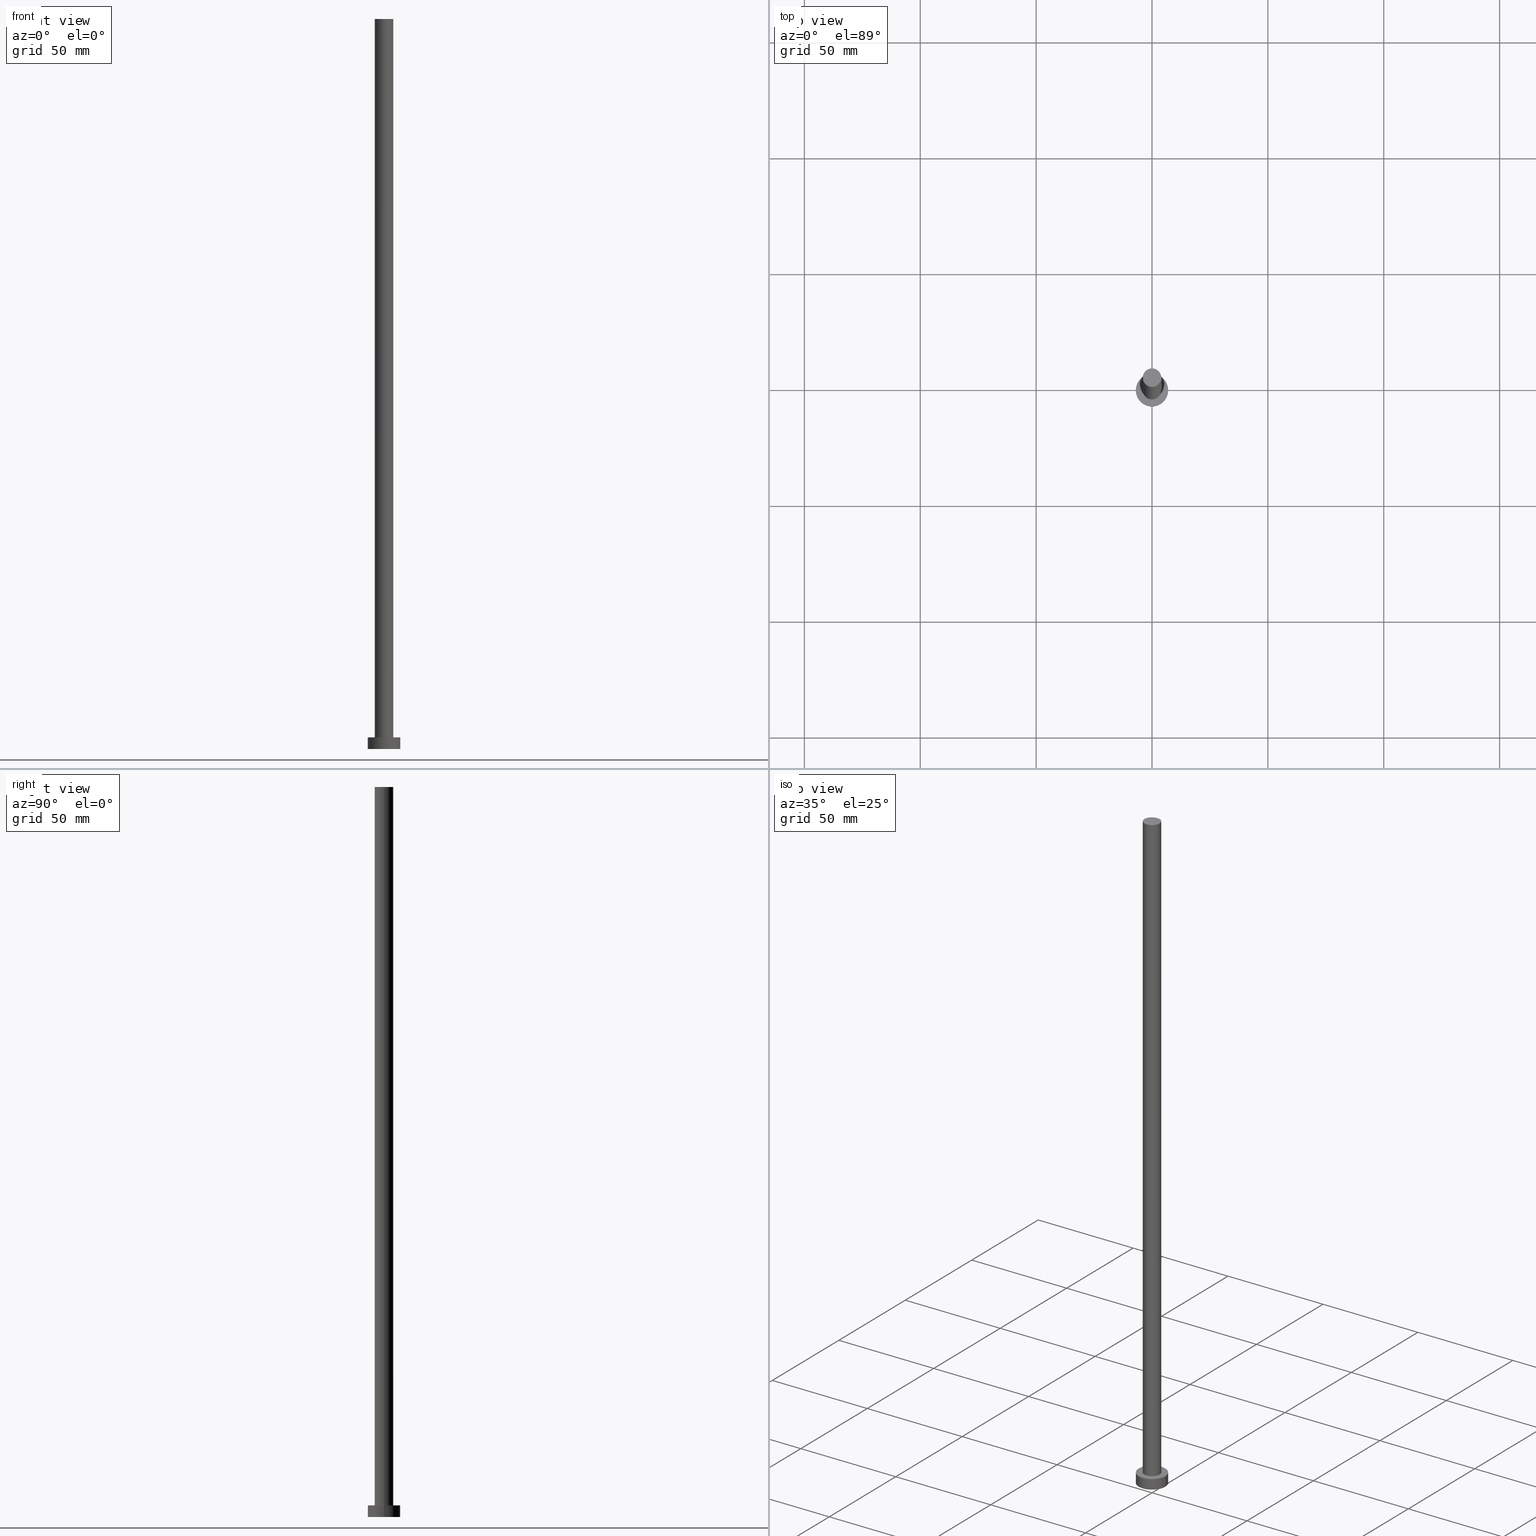
[diagram: canonical four-view strip — front | top / right | iso, engineering-drawing reading convention]
A machine part, canonical four-view strip (front | top / right | iso — engineering-drawing reading convention). The complete STEP part file that produces these views, byte-faithful:
ISO-10303-21;
HEADER;
FILE_DESCRIPTION (( 'STEP AP203' ),
    '1' );
FILE_NAME ('fa00.STEP',
    '2023-02-13T14:22:35',
    ( '' ),
    ( '' ),
    'SwSTEP 2.0',
    'SolidWorks 2019',
    '' );
FILE_SCHEMA (( 'CONFIG_CONTROL_DESIGN' ));
ENDSEC;

DATA;
#1 = CARTESIAN_POINT ( 'NONE',  ( 0.000000000000000000, 0.000000000000000000, 0.000000000000000000 ) ) ;
#2 = DIRECTION ( 'NONE',  ( 0.000000000000000000, 0.000000000000000000, 1.000000000000000000 ) ) ;
#3 = DIRECTION ( 'NONE',  ( 1.000000000000000000, 0.000000000000000000, -0.000000000000000000 ) ) ;
#4 = AXIS2_PLACEMENT_3D ( 'NONE', #174, #177, #3 ) ;
#5 = CARTESIAN_POINT ( 'NONE',  ( 0.000000000000000000, 0.000000000000000000, 5.000000000000000000 ) ) ;
#6 = EDGE_CURVE ( 'NONE', #168, #150, #172, .T. ) ;
#7 = CARTESIAN_POINT ( 'NONE',  ( -7.000000000000000000, 0.000000000000000000, 0.000000000000000000 ) ) ;
#8 = DIRECTION ( 'NONE',  ( -1.000000000000000000, 0.000000000000000000, 0.000000000000000000 ) ) ;
#9 = PERSON_AND_ORGANIZATION ( #149, #59 ) ;
#10 = DIRECTION ( 'NONE',  ( 0.000000000000000000, 0.000000000000000000, 1.000000000000000000 ) ) ;
#11 = EDGE_CURVE ( 'NONE', #168, #74, #21, .T. ) ;
#12 = APPROVAL ( #143, 'NEUR�EN�' ) ;
#13 = PERSON_AND_ORGANIZATION ( #149, #59 ) ;
#14 = DATE_AND_TIME ( #246, #122 ) ;
#15 = EDGE_CURVE ( 'NONE', #254, #74, #193, .T. ) ;
#16 = AXIS2_PLACEMENT_3D ( 'NONE', #80, #221, #238 ) ;
#17 = DIRECTION ( 'NONE',  ( 1.000000000000000000, 0.000000000000000000, 0.000000000000000000 ) ) ;
#18 = ORIENTED_EDGE ( 'NONE', *, *, #140, .F. ) ;
#19 = EDGE_CURVE ( 'NONE', #150, #254, #154, .T. ) ;
#20 = PERSON_AND_ORGANIZATION_ROLE ( 'design_owner' ) ;
#21 = LINE ( 'NONE', #95, #138 ) ;
#22 = CARTESIAN_POINT ( 'NONE',  ( 0.000000000000000000, 0.000000000000000000, 5.000000000000000000 ) ) ;
#23 = DIRECTION ( 'NONE',  ( -0.000000000000000000, -0.000000000000000000, -1.000000000000000000 ) ) ;
#24 = DIRECTION ( 'NONE',  ( 1.000000000000000000, 0.000000000000000000, 0.000000000000000000 ) ) ;
#25 = CYLINDRICAL_SURFACE ( 'NONE', #123, 7.000000000000000000 ) ;
#26 = DIRECTION ( 'NONE',  ( -1.000000000000000000, 0.000000000000000000, 0.000000000000000000 ) ) ;
#27 = PERSON_AND_ORGANIZATION ( #149, #59 ) ;
#28 = CC_DESIGN_PERSON_AND_ORGANIZATION_ASSIGNMENT ( #67, #250, ( #73 ) ) ;
#29 = CARTESIAN_POINT ( 'NONE',  ( 0.000000000000000000, 0.000000000000000000, 315.0000000000000000 ) ) ;
#30 = CALENDAR_DATE ( 2023, 13, 2 ) ;
#31 = CALENDAR_DATE ( 2023, 13, 2 ) ;
#32 = CARTESIAN_POINT ( 'NONE',  ( -7.000000000000000000, 0.000000000000000000, 5.000000000000000000 ) ) ;
#33 = EDGE_LOOP ( 'NONE', ( #52, #110 ) ) ;
#34 = APPROVAL_ROLE ( '' ) ;
#35 = LOCAL_TIME ( 15, 22, 35.00000000000000000, #228 ) ;
#36 = CLOSED_SHELL ( 'NONE', ( #111, #37, #217, #210, #62, #46, #49 ) ) ;
#37 = ADVANCED_FACE ( 'NONE', ( #214 ), #25, .T. ) ;
#38 = VECTOR ( 'NONE', #223, 1000.000000000000000 ) ;
#39 = ORIENTED_EDGE ( 'NONE', *, *, #136, .F. ) ;
#40 = ORIENTED_EDGE ( 'NONE', *, *, #11, .F. ) ;
#41 = CARTESIAN_POINT ( 'NONE',  ( 0.000000000000000000, 0.000000000000000000, 5.000000000000000000 ) ) ;
#42 = ORIENTED_EDGE ( 'NONE', *, *, #6, .F. ) ;
#43 = AXIS2_PLACEMENT_3D ( 'NONE', #199, #237, #197 ) ;
#44 = ORIENTED_EDGE ( 'NONE', *, *, #120, .T. ) ;
#45 = FACE_OUTER_BOUND ( 'NONE', #108, .T. ) ;
#46 = ADVANCED_FACE ( 'NONE', ( #114 ), #100, .T. ) ;
#47 = APPROVAL_ROLE ( '' ) ;
#48 = ORIENTED_EDGE ( 'NONE', *, *, #231, .T. ) ;
#49 = ADVANCED_FACE ( 'NONE', ( #45 ), #79, .T. ) ;
#50 = UNCERTAINTY_MEASURE_WITH_UNIT (LENGTH_MEASURE( 1.000000000000000082E-05 ), #255, 'distance_accuracy_value', 'NONE');
#51 = APPROVAL ( #65, 'NEUR�EN�' ) ;
#52 = ORIENTED_EDGE ( 'NONE', *, *, #231, .F. ) ;
#53 = APPLICATION_CONTEXT ( 'configuration controlled 3d designs of mechanical parts and assemblies' ) ;
#54 = DIRECTION ( 'NONE',  ( -0.000000000000000000, -0.000000000000000000, -1.000000000000000000 ) ) ;
#55 = AXIS2_PLACEMENT_3D ( 'NONE', #222, #158, #8 ) ;
#56 = ORIENTED_EDGE ( 'NONE', *, *, #204, .T. ) ;
#57 = ADVANCED_BREP_SHAPE_REPRESENTATION ( 'fa00', ( #151, #245 ), #183 ) ;
#58 = VERTEX_POINT ( 'NONE', #116 ) ;
#59 = ORGANIZATION ( 'NEUR�EN�', 'NEUR�EN�', '' ) ;
#60 = FACE_OUTER_BOUND ( 'NONE', #70, .T. ) ;
#61 = CARTESIAN_POINT ( 'NONE',  ( -4.000000000000000000, 0.000000000000000000, 315.0000000000000000 ) ) ;
#62 = ADVANCED_FACE ( 'NONE', ( #113 ), #200, .F. ) ;
#63 = COORDINATED_UNIVERSAL_TIME_OFFSET ( 1, 0, .AHEAD. ) ;
#64 = CC_DESIGN_APPROVAL ( #77, ( #209 ) ) ;
#65 = APPROVAL_STATUS ( 'not_yet_approved' ) ;
#66 = AXIS2_PLACEMENT_3D ( 'NONE', #41, #219, #99 ) ;
#67 = PERSON_AND_ORGANIZATION ( #149, #59 ) ;
#68 = CC_DESIGN_DATE_AND_TIME_ASSIGNMENT ( #244, #139, ( #96 ) ) ;
#69 = VECTOR ( 'NONE', #54, 1000.000000000000000 ) ;
#70 = EDGE_LOOP ( 'NONE', ( #173, #71, #220, #252 ) ) ;
#71 = ORIENTED_EDGE ( 'NONE', *, *, #140, .T. ) ;
#72 = ORIENTED_EDGE ( 'NONE', *, *, #188, .T. ) ;
#73 = PRODUCT_DEFINITION_FORMATION_WITH_SPECIFIED_SOURCE ( 'LIBOVOLN�', '', #129, .NOT_KNOWN. ) ;
#74 = VERTEX_POINT ( 'NONE', #241 ) ;
#75 = CARTESIAN_POINT ( 'NONE',  ( 0.000000000000000000, 0.000000000000000000, 5.000000000000000000 ) ) ;
#76 = DIRECTION ( 'NONE',  ( 0.000000000000000000, 0.000000000000000000, 1.000000000000000000 ) ) ;
#77 = APPROVAL ( #208, 'NEUR�EN�' ) ;
#78 = DIRECTION ( 'NONE',  ( -0.000000000000000000, -0.000000000000000000, -1.000000000000000000 ) ) ;
#79 = PLANE ( 'NONE',  #16 ) ;
#80 = CARTESIAN_POINT ( 'NONE',  ( 0.000000000000000000, 0.000000000000000000, 315.0000000000000000 ) ) ;
#81 = CARTESIAN_POINT ( 'NONE',  ( 4.000000000000000000, 4.898587196589412829E-16, 315.0000000000000000 ) ) ;
#82 = DIRECTION ( 'NONE',  ( 0.000000000000000000, 0.000000000000000000, 1.000000000000000000 ) ) ;
#83 = DIRECTION ( 'NONE',  ( -1.000000000000000000, 0.000000000000000000, 0.000000000000000000 ) ) ;
#84 = LINE ( 'NONE', #202, #191 ) ;
#85 = COORDINATED_UNIVERSAL_TIME_OFFSET ( 1, 0, .AHEAD. ) ;
#86 = DIRECTION ( 'NONE',  ( 1.000000000000000000, 0.000000000000000000, 0.000000000000000000 ) ) ;
#87 = AXIS2_PLACEMENT_3D ( 'NONE', #22, #78, #155 ) ;
#88 = SECURITY_CLASSIFICATION_LEVEL ( 'unclassified' ) ;
#89 = EDGE_LOOP ( 'NONE', ( #42, #167, #56, #235 ) ) ;
#90 = APPROVAL_PERSON_ORGANIZATION ( #13, #77, #34 ) ;
#91 = ORIENTED_EDGE ( 'NONE', *, *, #15, .F. ) ;
#92 = CC_DESIGN_PERSON_AND_ORGANIZATION_ASSIGNMENT ( #230, #145, ( #209 ) ) ;
#93 = VERTEX_POINT ( 'NONE', #61 ) ;
#94 = ORIENTED_EDGE ( 'NONE', *, *, #6, .T. ) ;
#95 = CARTESIAN_POINT ( 'NONE',  ( 7.000000000000000000, 8.572527594031473190E-16, 5.000000000000000000 ) ) ;
#96 = PRODUCT_DEFINITION ( 'NEZN�M�', '', #73, #251 ) ;
#97 = PRODUCT_DEFINITION_SHAPE ( 'NONE', 'NONE',  #96 ) ;
#98 = CARTESIAN_POINT ( 'NONE',  ( 0.000000000000000000, 0.000000000000000000, 315.0000000000000000 ) ) ;
#99 = DIRECTION ( 'NONE',  ( 1.000000000000000000, 0.000000000000000000, -0.000000000000000000 ) ) ;
#100 = CYLINDRICAL_SURFACE ( 'NONE', #55, 4.000000000000000000 ) ;
#101 = APPROVAL_PERSON_ORGANIZATION ( #119, #51, #141 ) ;
#102 = DIRECTION ( 'NONE',  ( 0.000000000000000000, 0.000000000000000000, 1.000000000000000000 ) ) ;
#103 = APPLICATION_PROTOCOL_DEFINITION ( 'international standard', 'config_control_design', 1994, #53 ) ;
#104 = FACE_OUTER_BOUND ( 'NONE', #126, .T. ) ;
#105 = CALENDAR_DATE ( 2023, 13, 2 ) ;
#106 = EDGE_LOOP ( 'NONE', ( #91, #215 ) ) ;
#107 = DATE_AND_TIME ( #30, #171 ) ;
#108 = EDGE_LOOP ( 'NONE', ( #128, #72 ) ) ;
#109 = ORIENTED_EDGE ( 'NONE', *, *, #15, .T. ) ;
#110 = ORIENTED_EDGE ( 'NONE', *, *, #162, .F. ) ;
#111 = ADVANCED_FACE ( 'NONE', ( #60 ), #135, .T. ) ;
#112 = EDGE_LOOP ( 'NONE', ( #40, #213, #216, #109 ) ) ;
#113 = FACE_OUTER_BOUND ( 'NONE', #106, .T. ) ;
#114 = FACE_OUTER_BOUND ( 'NONE', #195, .T. ) ;
#115 = PERSON_AND_ORGANIZATION ( #149, #59 ) ;
#116 = CARTESIAN_POINT ( 'NONE',  ( -4.000000000000000000, 0.000000000000000000, 5.000000000000000000 ) ) ;
#117 = CARTESIAN_POINT ( 'NONE',  ( 0.000000000000000000, 0.000000000000000000, 0.000000000000000000 ) ) ;
#118 = DATE_AND_TIME ( #181, #130 ) ;
#119 = PERSON_AND_ORGANIZATION ( #149, #59 ) ;
#120 = EDGE_CURVE ( 'NONE', #150, #168, #124, .T. ) ;
#121 = PERSON_AND_ORGANIZATION ( #149, #59 ) ;
#122 = LOCAL_TIME ( 15, 22, 35.00000000000000000, #187 ) ;
#123 = AXIS2_PLACEMENT_3D ( 'NONE', #201, #159, #83 ) ;
#124 = CIRCLE ( 'NONE', #144, 7.000000000000000000 ) ;
#125 = ORIENTED_EDGE ( 'NONE', *, *, #192, .T. ) ;
#126 = EDGE_LOOP ( 'NONE', ( #44, #94 ) ) ;
#127 =( NAMED_UNIT ( * ) SI_UNIT ( $, .STERADIAN. ) SOLID_ANGLE_UNIT ( ) );
#128 = ORIENTED_EDGE ( 'NONE', *, *, #136, .T. ) ;
#129 = PRODUCT ( 'fa00', 'fa00', '', ( #198 ) ) ;
#130 = LOCAL_TIME ( 15, 22, 35.00000000000000000, #63 ) ;
#131 = DIRECTION ( 'NONE',  ( 0.000000000000000000, 0.000000000000000000, 1.000000000000000000 ) ) ;
#132 = CARTESIAN_POINT ( 'NONE',  ( 0.000000000000000000, 0.000000000000000000, 5.000000000000000000 ) ) ;
#133 = CIRCLE ( 'NONE', #142, 4.000000000000000000 ) ;
#134 = APPLICATION_PROTOCOL_DEFINITION ( 'international standard', 'config_control_design', 1994, #248 ) ;
#135 = CYLINDRICAL_SURFACE ( 'NONE', #212, 4.000000000000000000 ) ;
#136 = EDGE_CURVE ( 'NONE', #93, #170, #178, .T. ) ;
#137 = DIRECTION ( 'NONE',  ( 0.000000000000000000, 0.000000000000000000, 1.000000000000000000 ) ) ;
#138 = VECTOR ( 'NONE', #194, 1000.000000000000000 ) ;
#139 = DATE_TIME_ROLE ( 'creation_date' ) ;
#140 = EDGE_CURVE ( 'NONE', #170, #253, #84, .T. ) ;
#141 = APPROVAL_ROLE ( '' ) ;
#142 = AXIS2_PLACEMENT_3D ( 'NONE', #5, #206, #86 ) ;
#143 = APPROVAL_STATUS ( 'not_yet_approved' ) ;
#144 = AXIS2_PLACEMENT_3D ( 'NONE', #132, #102, #180 ) ;
#145 = PERSON_AND_ORGANIZATION_ROLE ( 'classification_officer' ) ;
#146 = AXIS2_PLACEMENT_3D ( 'NONE', #29, #10, #157 ) ;
#147 = CIRCLE ( 'NONE', #152, 4.000000000000000000 ) ;
#148 = CC_DESIGN_PERSON_AND_ORGANIZATION_ASSIGNMENT ( #121, #229, ( #73 ) ) ;
#149 = PERSON ( 'NEUR�EN�', 'NEUR�EN�', 'NEUR�EN�', ('NEUR�EN�'), ('NEUR�EN�'), ('NEUR�EN�') ) ;
#150 = VERTEX_POINT ( 'NONE', #32 ) ;
#151 = MANIFOLD_SOLID_BREP ( 'P�idat vysunut�m3', #36 ) ;
#152 = AXIS2_PLACEMENT_3D ( 'NONE', #75, #131, #24 ) ;
#153 = CC_DESIGN_APPROVAL ( #51, ( #96 ) ) ;
#154 = LINE ( 'NONE', #233, #69 ) ;
#155 = DIRECTION ( 'NONE',  ( -1.000000000000000000, 0.000000000000000000, 0.000000000000000000 ) ) ;
#156 = DIRECTION ( 'NONE',  ( 1.000000000000000000, 0.000000000000000000, 0.000000000000000000 ) ) ;
#157 = DIRECTION ( 'NONE',  ( 1.000000000000000000, 0.000000000000000000, 0.000000000000000000 ) ) ;
#158 = DIRECTION ( 'NONE',  ( -0.000000000000000000, -0.000000000000000000, -1.000000000000000000 ) ) ;
#159 = DIRECTION ( 'NONE',  ( -0.000000000000000000, -0.000000000000000000, -1.000000000000000000 ) ) ;
#160 = CIRCLE ( 'NONE', #146, 4.000000000000000000 ) ;
#161 = CARTESIAN_POINT ( 'NONE',  ( -4.000000000000000000, 0.000000000000000000, 315.0000000000000000 ) ) ;
#162 = EDGE_CURVE ( 'NONE', #253, #58, #133, .T. ) ;
#163 = DATE_TIME_ROLE ( 'classification_date' ) ;
#164 = COORDINATED_UNIVERSAL_TIME_OFFSET ( 1, 0, .AHEAD. ) ;
#165 = PRODUCT_RELATED_PRODUCT_CATEGORY ( 'detail', '', ( #129 ) ) ;
#166 = CC_DESIGN_APPROVAL ( #12, ( #73 ) ) ;
#167 = ORIENTED_EDGE ( 'NONE', *, *, #11, .T. ) ;
#168 = VERTEX_POINT ( 'NONE', #185 ) ;
#169 = CYLINDRICAL_SURFACE ( 'NONE', #87, 7.000000000000000000 ) ;
#170 = VERTEX_POINT ( 'NONE', #81 ) ;
#171 = LOCAL_TIME ( 15, 22, 35.00000000000000000, #164 ) ;
#172 = CIRCLE ( 'NONE', #43, 7.000000000000000000 ) ;
#173 = ORIENTED_EDGE ( 'NONE', *, *, #188, .F. ) ;
#174 = CARTESIAN_POINT ( 'NONE',  ( 0.000000000000000000, 0.000000000000000000, 0.000000000000000000 ) ) ;
#175 = CIRCLE ( 'NONE', #236, 7.000000000000000000 ) ;
#176 = CARTESIAN_POINT ( 'NONE',  ( 4.000000000000000000, 4.898587196589412829E-16, 5.000000000000000000 ) ) ;
#177 = DIRECTION ( 'NONE',  ( 0.000000000000000000, 0.000000000000000000, 1.000000000000000000 ) ) ;
#178 = CIRCLE ( 'NONE', #249, 4.000000000000000000 ) ;
#179 = CARTESIAN_POINT ( 'NONE',  ( 0.000000000000000000, 0.000000000000000000, 0.000000000000000000 ) ) ;
#180 = DIRECTION ( 'NONE',  ( 1.000000000000000000, 0.000000000000000000, 0.000000000000000000 ) ) ;
#181 = CALENDAR_DATE ( 2023, 13, 2 ) ;
#182 = PLANE ( 'NONE',  #66 ) ;
#183 =( GEOMETRIC_REPRESENTATION_CONTEXT ( 3 ) GLOBAL_UNCERTAINTY_ASSIGNED_CONTEXT ( ( #50 ) ) GLOBAL_UNIT_ASSIGNED_CONTEXT ( ( #255, #240, #127 ) ) REPRESENTATION_CONTEXT ( 'NONE', 'WORKASPACE' ) );
#184 = APPROVAL_DATE_TIME ( #226, #12 ) ;
#185 = CARTESIAN_POINT ( 'NONE',  ( 7.000000000000000000, 8.572527594031473190E-16, 5.000000000000000000 ) ) ;
#186 = APPROVAL_DATE_TIME ( #14, #77 ) ;
#187 = COORDINATED_UNIVERSAL_TIME_OFFSET ( 1, 0, .AHEAD. ) ;
#188 = EDGE_CURVE ( 'NONE', #170, #93, #160, .T. ) ;
#189 = SHAPE_DEFINITION_REPRESENTATION ( #97, #57 ) ;
#190 = LOCAL_TIME ( 15, 22, 35.00000000000000000, #85 ) ;
#191 = VECTOR ( 'NONE', #243, 1000.000000000000000 ) ;
#192 = EDGE_CURVE ( 'NONE', #93, #58, #242, .T. ) ;
#193 = CIRCLE ( 'NONE', #239, 7.000000000000000000 ) ;
#194 = DIRECTION ( 'NONE',  ( -0.000000000000000000, -0.000000000000000000, -1.000000000000000000 ) ) ;
#195 = EDGE_LOOP ( 'NONE', ( #18, #39, #125, #48 ) ) ;
#196 = FACE_OUTER_BOUND ( 'NONE', #112, .T. ) ;
#197 = DIRECTION ( 'NONE',  ( 1.000000000000000000, 0.000000000000000000, 0.000000000000000000 ) ) ;
#198 = MECHANICAL_CONTEXT ( 'NONE', #248, 'mechanical' ) ;
#199 = CARTESIAN_POINT ( 'NONE',  ( 0.000000000000000000, 0.000000000000000000, 5.000000000000000000 ) ) ;
#200 = PLANE ( 'NONE',  #4 ) ;
#201 = CARTESIAN_POINT ( 'NONE',  ( 0.000000000000000000, 0.000000000000000000, 5.000000000000000000 ) ) ;
#202 = CARTESIAN_POINT ( 'NONE',  ( 4.000000000000000000, 4.898587196589412829E-16, 315.0000000000000000 ) ) ;
#203 = CARTESIAN_POINT ( 'NONE',  ( 0.000000000000000000, 0.000000000000000000, 315.0000000000000000 ) ) ;
#204 = EDGE_CURVE ( 'NONE', #74, #254, #175, .T. ) ;
#205 = FACE_BOUND ( 'NONE', #33, .T. ) ;
#206 = DIRECTION ( 'NONE',  ( 0.000000000000000000, 0.000000000000000000, 1.000000000000000000 ) ) ;
#207 = PERSON_AND_ORGANIZATION_ROLE ( 'creator' ) ;
#208 = APPROVAL_STATUS ( 'not_yet_approved' ) ;
#209 = SECURITY_CLASSIFICATION ( '', '', #88 ) ;
#210 = ADVANCED_FACE ( 'NONE', ( #205, #104 ), #182, .T. ) ;
#211 = CC_DESIGN_SECURITY_CLASSIFICATION ( #209, ( #73 ) ) ;
#212 = AXIS2_PLACEMENT_3D ( 'NONE', #203, #23, #26 ) ;
#213 = ORIENTED_EDGE ( 'NONE', *, *, #120, .F. ) ;
#214 = FACE_OUTER_BOUND ( 'NONE', #89, .T. ) ;
#215 = ORIENTED_EDGE ( 'NONE', *, *, #204, .F. ) ;
#216 = ORIENTED_EDGE ( 'NONE', *, *, #19, .T. ) ;
#217 = ADVANCED_FACE ( 'NONE', ( #196 ), #169, .T. ) ;
#218 = CC_DESIGN_DATE_AND_TIME_ASSIGNMENT ( #107, #163, ( #209 ) ) ;
#219 = DIRECTION ( 'NONE',  ( 0.000000000000000000, 0.000000000000000000, 1.000000000000000000 ) ) ;
#220 = ORIENTED_EDGE ( 'NONE', *, *, #162, .T. ) ;
#221 = DIRECTION ( 'NONE',  ( 0.000000000000000000, 0.000000000000000000, 1.000000000000000000 ) ) ;
#222 = CARTESIAN_POINT ( 'NONE',  ( 0.000000000000000000, 0.000000000000000000, 315.0000000000000000 ) ) ;
#223 = DIRECTION ( 'NONE',  ( -0.000000000000000000, -0.000000000000000000, -1.000000000000000000 ) ) ;
#224 = DIRECTION ( 'NONE',  ( 1.000000000000000000, 0.000000000000000000, 0.000000000000000000 ) ) ;
#225 = APPROVAL_PERSON_ORGANIZATION ( #27, #12, #47 ) ;
#226 = DATE_AND_TIME ( #105, #35 ) ;
#227 = APPROVAL_DATE_TIME ( #118, #51 ) ;
#228 = COORDINATED_UNIVERSAL_TIME_OFFSET ( 1, 0, .AHEAD. ) ;
#229 = PERSON_AND_ORGANIZATION_ROLE ( 'creator' ) ;
#230 = PERSON_AND_ORGANIZATION ( #149, #59 ) ;
#231 = EDGE_CURVE ( 'NONE', #58, #253, #147, .T. ) ;
#232 = CC_DESIGN_PERSON_AND_ORGANIZATION_ASSIGNMENT ( #9, #207, ( #96 ) ) ;
#233 = CARTESIAN_POINT ( 'NONE',  ( -7.000000000000000000, 0.000000000000000000, 5.000000000000000000 ) ) ;
#234 = DIRECTION ( 'NONE',  ( 1.000000000000000000, 0.000000000000000000, 0.000000000000000000 ) ) ;
#235 = ORIENTED_EDGE ( 'NONE', *, *, #19, .F. ) ;
#236 = AXIS2_PLACEMENT_3D ( 'NONE', #117, #137, #224 ) ;
#237 = DIRECTION ( 'NONE',  ( 0.000000000000000000, 0.000000000000000000, 1.000000000000000000 ) ) ;
#238 = DIRECTION ( 'NONE',  ( 1.000000000000000000, 0.000000000000000000, -0.000000000000000000 ) ) ;
#239 = AXIS2_PLACEMENT_3D ( 'NONE', #1, #76, #17 ) ;
#240 =( NAMED_UNIT ( * ) PLANE_ANGLE_UNIT ( ) SI_UNIT ( $, .RADIAN. ) );
#241 = CARTESIAN_POINT ( 'NONE',  ( 7.000000000000000000, 8.572527594031473190E-16, 0.000000000000000000 ) ) ;
#242 = LINE ( 'NONE', #161, #38 ) ;
#243 = DIRECTION ( 'NONE',  ( -0.000000000000000000, -0.000000000000000000, -1.000000000000000000 ) ) ;
#244 = DATE_AND_TIME ( #31, #190 ) ;
#245 = AXIS2_PLACEMENT_3D ( 'NONE', #179, #82, #234 ) ;
#246 = CALENDAR_DATE ( 2023, 13, 2 ) ;
#247 = CC_DESIGN_PERSON_AND_ORGANIZATION_ASSIGNMENT ( #115, #20, ( #129 ) ) ;
#248 = APPLICATION_CONTEXT ( 'configuration controlled 3d designs of mechanical parts and assemblies' ) ;
#249 = AXIS2_PLACEMENT_3D ( 'NONE', #98, #2, #156 ) ;
#250 = PERSON_AND_ORGANIZATION_ROLE ( 'design_supplier' ) ;
#251 = DESIGN_CONTEXT ( 'detailed design', #53, 'design' ) ;
#252 = ORIENTED_EDGE ( 'NONE', *, *, #192, .F. ) ;
#253 = VERTEX_POINT ( 'NONE', #176 ) ;
#254 = VERTEX_POINT ( 'NONE', #7 ) ;
#255 =( LENGTH_UNIT ( ) NAMED_UNIT ( * ) SI_UNIT ( .MILLI., .METRE. ) );
ENDSEC;
END-ISO-10303-21;
